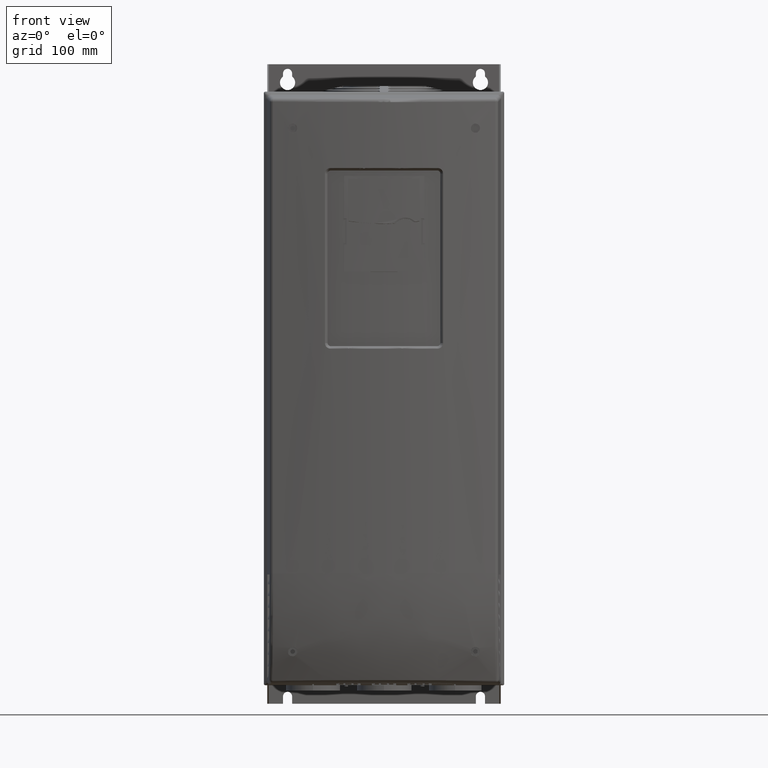
[diagram: clean part render]
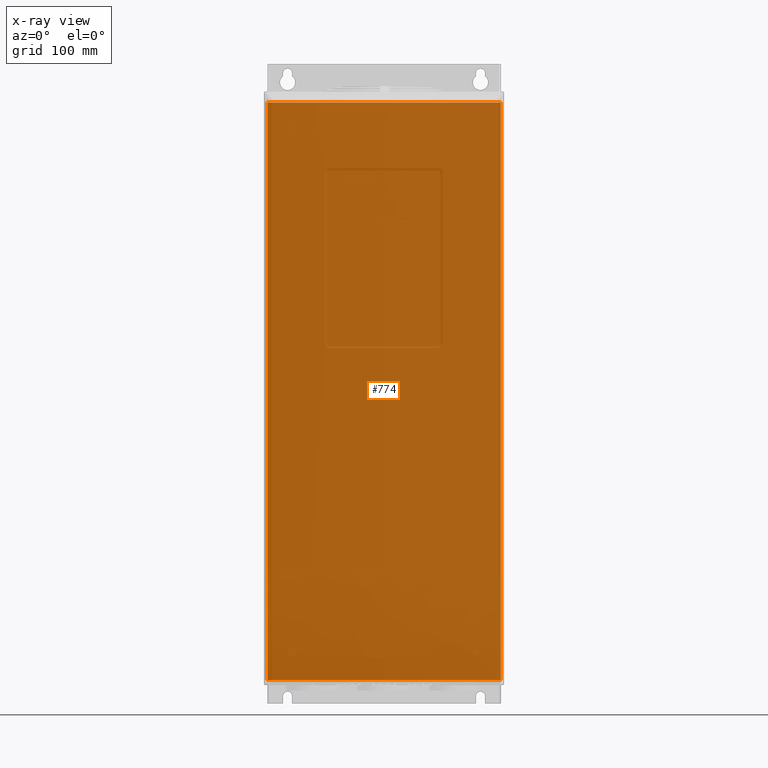
[diagram: x-ray — body ghosted, one internal face saturated and labeled with its STEP entity id]
A machine part, front view, then the same camera in x-ray: the body is ghosted and one INTERNAL B-rep face — a face not visible from any outside direction — is saturated and labeled: STEP entity #774.
In plain terms, the highlighted planar face has unit normal (0, 1, -0).
Its self-contained STEP definition (entity closure, byte-faithful):
#318=DIRECTION('',(-1.E0,0.E0,0.E0));
#319=VECTOR('',#318,2.299999983489E2);
#320=CARTESIAN_POINT('',(1.149999992924E2,-1.499998618694E0,2.781064969333E2));
#321=LINE('',#320,#319);
#359=DIRECTION('',(0.E0,6.348591327051E-11,-1.E0));
#360=VECTOR('',#359,5.688000000485E2);
#361=CARTESIAN_POINT('',(-1.149999990565E2,-1.499998618694E0,2.781064969333E2));
#362=LINE('',#361,#360);
#441=DIRECTION('',(-2.984004666798E-12,6.348591444163E-11,-1.E0));
#442=VECTOR('',#441,5.688000000485E2);
#443=CARTESIAN_POINT('',(1.149999992924E2,-1.499998618694E0,2.781064969333E2));
#444=LINE('',#443,#442);
#483=DIRECTION('',(1.E0,0.E0,0.E0));
#484=VECTOR('',#483,2.299999983472E2);
#485=CARTESIAN_POINT('',(-1.149999990565E2,-1.499998582584E0,
-2.906935031152E2));
#486=LINE('',#485,#484);
#666=CARTESIAN_POINT('',(1.149999992924E2,-1.499998618694E0,2.781064969333E2));
#667=CARTESIAN_POINT('',(-1.149999990565E2,-1.499998618694E0,2.781064969333E2));
#668=VERTEX_POINT('',#666);
#669=VERTEX_POINT('',#667);
#696=CARTESIAN_POINT('',(-1.149999990565E2,-1.499998582584E0,
-2.906935031152E2));
#698=VERTEX_POINT('',#696);
#699=CARTESIAN_POINT('',(1.149999992907E2,-1.499998582584E0,-2.906935031152E2));
#700=VERTEX_POINT('',#699);
#760=CARTESIAN_POINT('',(1.149999992924E2,-1.499998618694E0,2.781064969333E2));
#761=DIRECTION('',(0.E0,1.E0,-1.454391958557E-14));
#762=DIRECTION('',(-1.E0,0.E0,0.E0));
#763=AXIS2_PLACEMENT_3D('',#760,#761,#762);
#764=PLANE('',#763);
#766=ORIENTED_EDGE('',*,*,#765,.T.);
#768=ORIENTED_EDGE('',*,*,#767,.T.);
#770=ORIENTED_EDGE('',*,*,#769,.F.);
#771=ORIENTED_EDGE('',*,*,#741,.T.);
#772=EDGE_LOOP('',(#766,#768,#770,#771));
#773=FACE_OUTER_BOUND('',#772,.F.);
#774=ADVANCED_FACE('',(#773),#764,.T.);
#741=EDGE_CURVE('',#668,#669,#321,.T.);
#765=EDGE_CURVE('',#669,#698,#362,.T.);
#767=EDGE_CURVE('',#698,#700,#486,.T.);
#769=EDGE_CURVE('',#668,#700,#444,.T.);